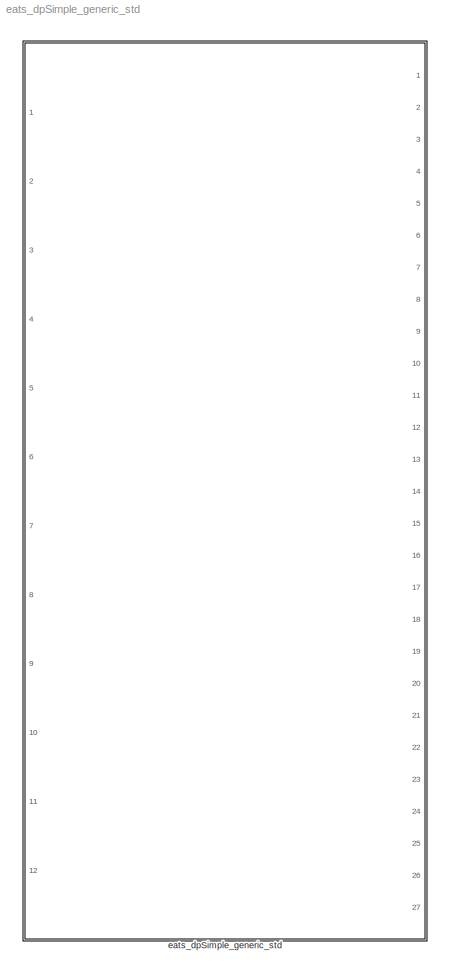
MODEL eats_dpSimple_generic_std
KIND library
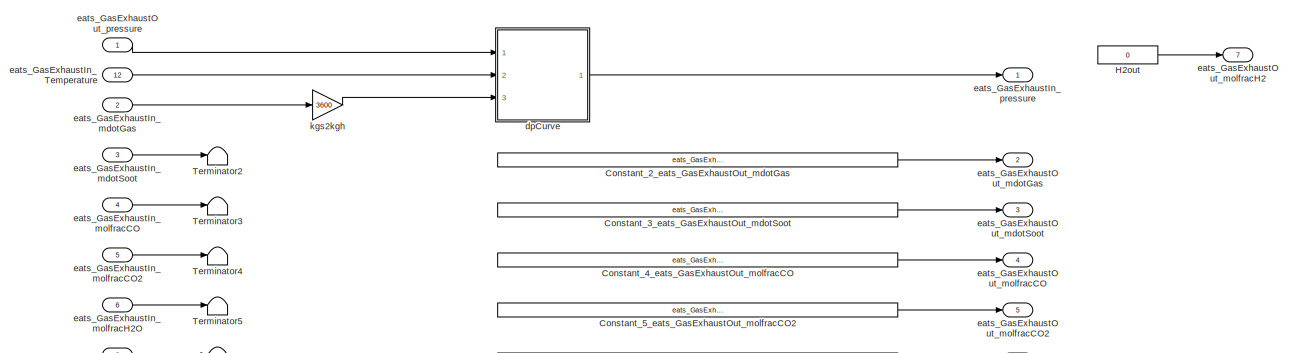
[diagram: eats_dpSimple_generic_std - part 1/2, full width, top band]
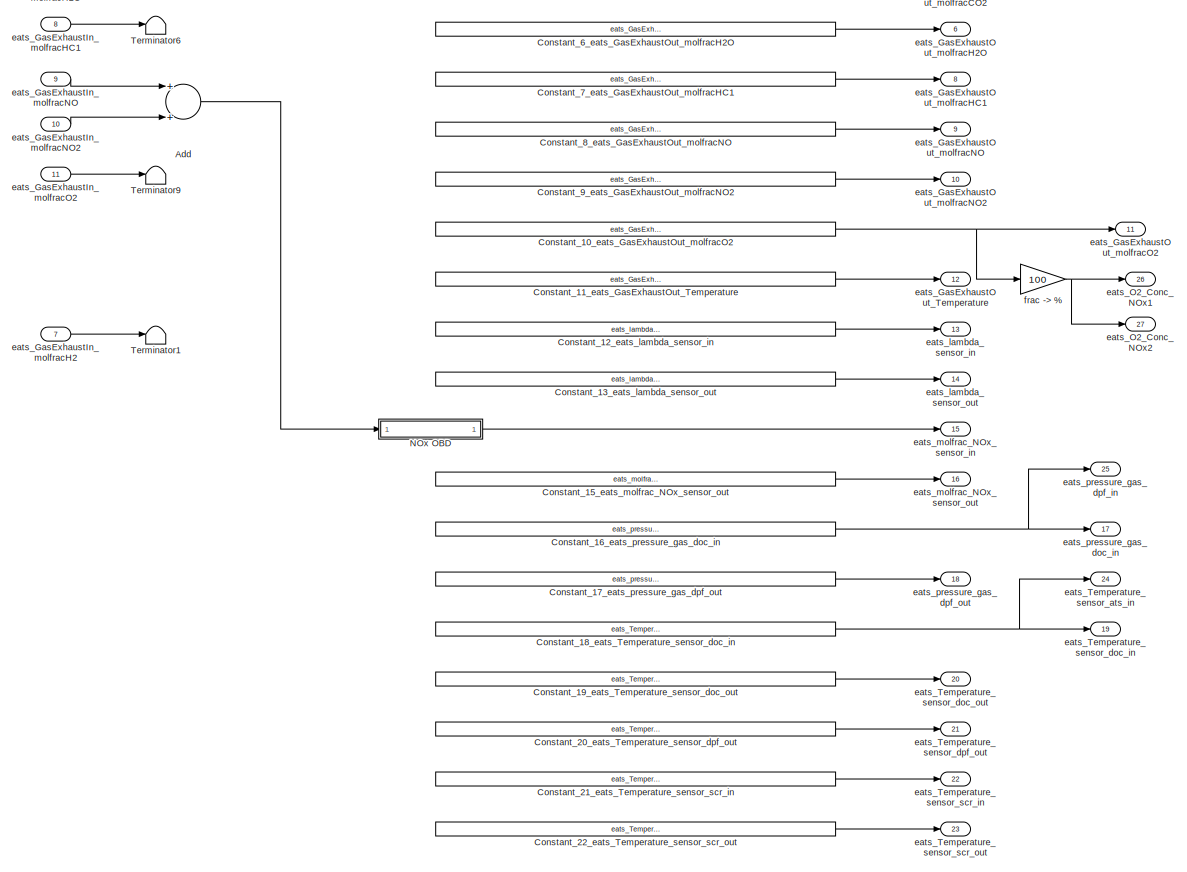
[diagram: eats_dpSimple_generic_std - part 2/2, full width, middle band]
BLOCK [SubSystem] eats_dpSimple_generic_std
  Ports = [12, 27]
  RequestExecContextInheritance = off
  SID = 1
BLOCK [Sum] eats_dpSimple_generic_std/Add
  InputSameDT = off
  OutDataTypeStr = Inherit: Inherit via internal rule
  Ports = [2, 1]
  SID = 91
  SaturateOnIntegerOverflow = off
BLOCK [Constant] eats_dpSimple_generic_std/Constant_10_eats_GasExhaustOut_molfracO2
  SID = 55
  Value = eats_GasExhaustOut_molfracO2
BLOCK [Constant] eats_dpSimple_generic_std/Constant_11_eats_GasExhaustOut_Temperature
  SID = 56
  Value = eats_GasExhaustOut_Temperature
BLOCK [Constant] eats_dpSimple_generic_std/Constant_12_eats_lambda_sensor_in
  SID = 57
  Value = eats_lambda_sensor_in
BLOCK [Constant] eats_dpSimple_generic_std/Constant_13_eats_lambda_sensor_out
  SID = 58
  Value = eats_lambda_sensor_out
BLOCK [Constant] eats_dpSimple_generic_std/Constant_15_eats_molfrac_NOx_sensor_out
  SID = 60
  Value = eats_molfrac_NOx_sensor_out
BLOCK [Constant] eats_dpSimple_generic_std/Constant_16_eats_pressure_gas_doc_in
  SID = 61
  Value = eats_pressure_gas_doc_in
BLOCK [Constant] eats_dpSimple_generic_std/Constant_17_eats_pressure_gas_dpf_out
  SID = 62
  Value = eats_pressure_gas_dpf_out
BLOCK [Constant] eats_dpSimple_generic_std/Constant_18_eats_Temperature_sensor_doc_in
  SID = 63
  Value = eats_Temperature_sensor_doc_in
BLOCK [Constant] eats_dpSimple_generic_std/Constant_19_eats_Temperature_sensor_doc_out
  SID = 64
  Value = eats_Temperature_sensor_doc_out
BLOCK [Constant] eats_dpSimple_generic_std/Constant_20_eats_Temperature_sensor_dpf_out
  SID = 65
  Value = eats_Temperature_sensor_dpf_out
BLOCK [Constant] eats_dpSimple_generic_std/Constant_21_eats_Temperature_sensor_scr_in
  SID = 66
  Value = eats_Temperature_sensor_scr_in
BLOCK [Constant] eats_dpSimple_generic_std/Constant_22_eats_Temperature_sensor_scr_out
  SID = 67
  Value = eats_Temperature_sensor_scr_out
BLOCK [Constant] eats_dpSimple_generic_std/Constant_2_eats_GasExhaustOut_mdotGas
  SID = 47
  Value = eats_GasExhaustOut_mdotGas
BLOCK [Constant] eats_dpSimple_generic_std/Constant_3_eats_GasExhaustOut_mdotSoot
  SID = 48
  Value = eats_GasExhaustOut_mdotSoot
BLOCK [Constant] eats_dpSimple_generic_std/Constant_4_eats_GasExhaustOut_molfracCO
  SID = 49
  Value = eats_GasExhaustOut_molfracCO
BLOCK [Constant] eats_dpSimple_generic_std/Constant_5_eats_GasExhaustOut_molfracCO2
  SID = 50
  Value = eats_GasExhaustOut_molfracCO2
BLOCK [Constant] eats_dpSimple_generic_std/Constant_6_eats_GasExhaustOut_molfracH2O
  SID = 51
  Value = eats_GasExhaustOut_molfracH2O
BLOCK [Constant] eats_dpSimple_generic_std/Constant_7_eats_GasExhaustOut_molfracHC1
  SID = 52
  Value = eats_GasExhaustOut_molfracHC1
BLOCK [Constant] eats_dpSimple_generic_std/Constant_8_eats_GasExhaustOut_molfracNO
  SID = 53
  Value = eats_GasExhaustOut_molfracNO
BLOCK [Constant] eats_dpSimple_generic_std/Constant_9_eats_GasExhaustOut_molfracNO2
  SID = 54
  Value = eats_GasExhaustOut_molfracNO2
BLOCK [Constant] eats_dpSimple_generic_std/H2out
  SID = 110
  Value = 0
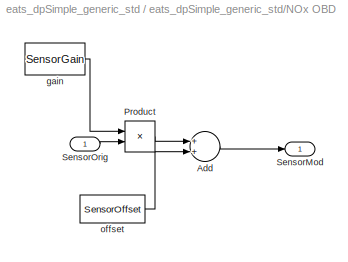
BLOCK [SubSystem] eats_dpSimple_generic_std/NOx OBD
  Ports = [1, 1]
  RequestExecContextInheritance = off
  SID = 92
BLOCK [Sum] eats_dpSimple_generic_std/NOx OBD/Add
  InputSameDT = off
  OutDataTypeStr = Inherit: Inherit via internal rule
  Ports = [2, 1]
  SID = 94
  SaturateOnIntegerOverflow = off
BLOCK [Product] eats_dpSimple_generic_std/NOx OBD/Product
  InputSameDT = off
  OutDataTypeStr = Inherit: Inherit via internal rule
  Ports = [2, 1]
  SID = 95
  SaturateOnIntegerOverflow = off
BLOCK [Outport] eats_dpSimple_generic_std/NOx OBD/SensorMod
  IconDisplay = Port number
  SID = 98
BLOCK [Inport] eats_dpSimple_generic_std/NOx OBD/SensorOrig
  IconDisplay = Port number
  SID = 93
BLOCK [Constant] eats_dpSimple_generic_std/NOx OBD/gain
  SID = 96
  Value = SensorGain
BLOCK [Constant] eats_dpSimple_generic_std/NOx OBD/offset
  SID = 97
  Value = SensorOffset
BLOCK [Terminator] eats_dpSimple_generic_std/Terminator1
  SID = 108
BLOCK [Terminator] eats_dpSimple_generic_std/Terminator2
  SID = 36
BLOCK [Terminator] eats_dpSimple_generic_std/Terminator3
  SID = 37
BLOCK [Terminator] eats_dpSimple_generic_std/Terminator4
  SID = 38
BLOCK [Terminator] eats_dpSimple_generic_std/Terminator5
  SID = 39
BLOCK [Terminator] eats_dpSimple_generic_std/Terminator6
  SID = 40
BLOCK [Terminator] eats_dpSimple_generic_std/Terminator9
  SID = 43
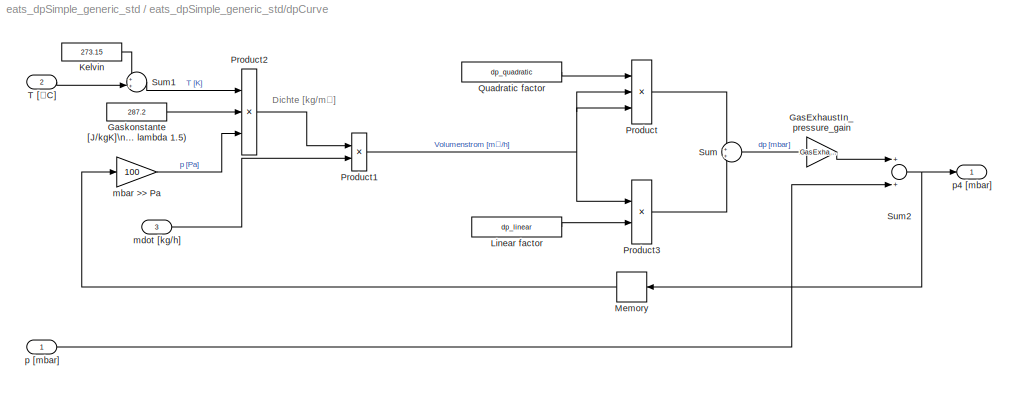
BLOCK [SubSystem] eats_dpSimple_generic_std/dpCurve
  Ports = [3, 1]
  RequestExecContextInheritance = off
  SID = 68
BLOCK [Gain] eats_dpSimple_generic_std/dpCurve/GasExhaustIn_pressure_gain
  Gain = GasExhaustIn_pressureGain
  OutDataTypeStr = Inherit: Inherit via internal rule
  ParamDataTypeStr = Inherit: Inherit via internal rule
  SID = 100
  SaturateOnIntegerOverflow = off
BLOCK [Constant] eats_dpSimple_generic_std/dpCurve/Gaskonstante [J//kgK]\n(Abgas ca 200°C, lambda 1.5)
  SID = 77
  Value = 287.2
BLOCK [Constant] eats_dpSimple_generic_std/dpCurve/Kelvin
  SID = 78
  Value = 273.15
BLOCK [Constant] eats_dpSimple_generic_std/dpCurve/Linear factor
  SID = 79
  Value = dp_linear
BLOCK [Memory] eats_dpSimple_generic_std/dpCurve/Memory
  SID = 80
  X0 = eats_GasExhaustIn_pressure
BLOCK [Product] eats_dpSimple_generic_std/dpCurve/Product
  InputSameDT = off
  Inputs = 3
  OutDataTypeStr = Inherit: Inherit via internal rule
  Ports = [3, 1]
  SID = 81
  SaturateOnIntegerOverflow = off
BLOCK [Product] eats_dpSimple_generic_std/dpCurve/Product1
  Inputs = /*
  Ports = [2, 1]
  RndMeth = Floor
  SID = 82
BLOCK [Product] eats_dpSimple_generic_std/dpCurve/Product2
  Inputs = //*
  Ports = [3, 1]
  RndMeth = Floor
  SID = 83
BLOCK [Product] eats_dpSimple_generic_std/dpCurve/Product3
  InputSameDT = off
  OutDataTypeStr = Inherit: Inherit via internal rule
  Ports = [2, 1]
  SID = 84
  SaturateOnIntegerOverflow = off
BLOCK [Constant] eats_dpSimple_generic_std/dpCurve/Quadratic factor
  SID = 85
  Value = dp_quadratic
BLOCK [Sum] eats_dpSimple_generic_std/dpCurve/Sum
  IconShape = round
  InputSameDT = off
  OutDataTypeStr = Inherit: Inherit via internal rule
  Ports = [2, 1]
  SID = 86
  SaturateOnIntegerOverflow = off
BLOCK [Sum] eats_dpSimple_generic_std/dpCurve/Sum1
  IconShape = round
  InputSameDT = off
  Inputs = ++|
  OutDataTypeStr = Inherit: Inherit via internal rule
  Ports = [2, 1]
  SID = 87
  SaturateOnIntegerOverflow = off
BLOCK [Sum] eats_dpSimple_generic_std/dpCurve/Sum2
  InputSameDT = off
  OutDataTypeStr = Inherit: Inherit via internal rule
  Ports = [2, 1]
  SID = 88
  SaturateOnIntegerOverflow = off
BLOCK [Inport] eats_dpSimple_generic_std/dpCurve/T [°C]
  IconDisplay = Port number
  Port = 2
  SID = 75
BLOCK [Gain] eats_dpSimple_generic_std/dpCurve/mbar >> Pa
  Gain = 100
  OutDataTypeStr = Inherit: Inherit via internal rule
  ParamDataTypeStr = Inherit: Inherit via internal rule
  SID = 89
  SaturateOnIntegerOverflow = off
BLOCK [Inport] eats_dpSimple_generic_std/dpCurve/mdot [kg//h]
  IconDisplay = Port number
  Port = 3
  SID = 76
BLOCK [Inport] eats_dpSimple_generic_std/dpCurve/p [mbar]
  IconDisplay = Port number
  SID = 74
BLOCK [Outport] eats_dpSimple_generic_std/dpCurve/p4 [mbar]
  IconDisplay = Port number
  SID = 90
BLOCK [Inport] eats_dpSimple_generic_std/eats_GasExhaustIn_Temperature
  IconDisplay = Port number
  Port = 12
  SID = 11
BLOCK [Inport] eats_dpSimple_generic_std/eats_GasExhaustIn_mdotGas
  IconDisplay = Port number
  Port = 2
  SID = 2
BLOCK [Inport] eats_dpSimple_generic_std/eats_GasExhaustIn_mdotSoot
  IconDisplay = Port number
  Port = 3
  SID = 3
BLOCK [Inport] eats_dpSimple_generic_std/eats_GasExhaustIn_molfracCO
  IconDisplay = Port number
  Port = 4
  SID = 4
BLOCK [Inport] eats_dpSimple_generic_std/eats_GasExhaustIn_molfracCO2
  IconDisplay = Port number
  Port = 5
  SID = 5
BLOCK [Inport] eats_dpSimple_generic_std/eats_GasExhaustIn_molfracH2
  IconDisplay = Port number
  Port = 7
  SID = 107
BLOCK [Inport] eats_dpSimple_generic_std/eats_GasExhaustIn_molfracH2O
  IconDisplay = Port number
  Port = 6
  SID = 6
BLOCK [Inport] eats_dpSimple_generic_std/eats_GasExhaustIn_molfracHC1
  IconDisplay = Port number
  Port = 8
  SID = 7
BLOCK [Inport] eats_dpSimple_generic_std/eats_GasExhaustIn_molfracNO
  IconDisplay = Port number
  Port = 9
  SID = 8
BLOCK [Inport] eats_dpSimple_generic_std/eats_GasExhaustIn_molfracNO2
  IconDisplay = Port number
  Port = 10
  SID = 9
BLOCK [Inport] eats_dpSimple_generic_std/eats_GasExhaustIn_molfracO2
  IconDisplay = Port number
  Port = 11
  SID = 10
BLOCK [Outport] eats_dpSimple_generic_std/eats_GasExhaustIn_pressure
  IconDisplay = Port number
  SID = 13
BLOCK [Outport] eats_dpSimple_generic_std/eats_GasExhaustOut_Temperature
  IconDisplay = Port number
  Port = 12
  SID = 23
BLOCK [Outport] eats_dpSimple_generic_std/eats_GasExhaustOut_mdotGas
  IconDisplay = Port number
  Port = 2
  SID = 14
BLOCK [Outport] eats_dpSimple_generic_std/eats_GasExhaustOut_mdotSoot
  IconDisplay = Port number
  Port = 3
  SID = 15
BLOCK [Outport] eats_dpSimple_generic_std/eats_GasExhaustOut_molfracCO
  IconDisplay = Port number
  Port = 4
  SID = 16
BLOCK [Outport] eats_dpSimple_generic_std/eats_GasExhaustOut_molfracCO2
  IconDisplay = Port number
  Port = 5
  SID = 17
BLOCK [Outport] eats_dpSimple_generic_std/eats_GasExhaustOut_molfracH2
  IconDisplay = Port number
  Port = 7
  SID = 109
BLOCK [Outport] eats_dpSimple_generic_std/eats_GasExhaustOut_molfracH2O
  IconDisplay = Port number
  Port = 6
  SID = 18
BLOCK [Outport] eats_dpSimple_generic_std/eats_GasExhaustOut_molfracHC1
  IconDisplay = Port number
  Port = 8
  SID = 19
BLOCK [Outport] eats_dpSimple_generic_std/eats_GasExhaustOut_molfracNO
  IconDisplay = Port number
  Port = 9
  SID = 20
BLOCK [Outport] eats_dpSimple_generic_std/eats_GasExhaustOut_molfracNO2
  IconDisplay = Port number
  Port = 10
  SID = 21
BLOCK [Outport] eats_dpSimple_generic_std/eats_GasExhaustOut_molfracO2
  IconDisplay = Port number
  Port = 11
  SID = 22
BLOCK [Inport] eats_dpSimple_generic_std/eats_GasExhaustOut_pressure
  IconDisplay = Port number
  SID = 12
BLOCK [Outport] eats_dpSimple_generic_std/eats_O2_Conc_NOx1
  IconDisplay = Port number
  Port = 26
  SID = 105
BLOCK [Outport] eats_dpSimple_generic_std/eats_O2_Conc_NOx2
  IconDisplay = Port number
  Port = 27
  SID = 106
BLOCK [Outport] eats_dpSimple_generic_std/eats_Temperature_sensor_ats_in
  IconDisplay = Port number
  Port = 24
  SID = 102
BLOCK [Outport] eats_dpSimple_generic_std/eats_Temperature_sensor_doc_in
  IconDisplay = Port number
  Port = 19
  SID = 30
BLOCK [Outport] eats_dpSimple_generic_std/eats_Temperature_sensor_doc_out
  IconDisplay = Port number
  Port = 20
  SID = 31
BLOCK [Outport] eats_dpSimple_generic_std/eats_Temperature_sensor_dpf_out
  IconDisplay = Port number
  Port = 21
  SID = 32
BLOCK [Outport] eats_dpSimple_generic_std/eats_Temperature_sensor_scr_in
  IconDisplay = Port number
  Port = 22
  SID = 33
BLOCK [Outport] eats_dpSimple_generic_std/eats_Temperature_sensor_scr_out
  IconDisplay = Port number
  Port = 23
  SID = 34
BLOCK [Outport] eats_dpSimple_generic_std/eats_lambda_sensor_in
  IconDisplay = Port number
  Port = 13
  SID = 24
BLOCK [Outport] eats_dpSimple_generic_std/eats_lambda_sensor_out
  IconDisplay = Port number
  Port = 14
  SID = 25
BLOCK [Outport] eats_dpSimple_generic_std/eats_molfrac_NOx_sensor_in
  IconDisplay = Port number
  Port = 15
  SID = 26
BLOCK [Outport] eats_dpSimple_generic_std/eats_molfrac_NOx_sensor_out
  IconDisplay = Port number
  Port = 16
  SID = 27
BLOCK [Outport] eats_dpSimple_generic_std/eats_pressure_gas_doc_in
  IconDisplay = Port number
  Port = 17
  SID = 28
BLOCK [Outport] eats_dpSimple_generic_std/eats_pressure_gas_dpf_in
  IconDisplay = Port number
  Port = 25
  SID = 103
BLOCK [Outport] eats_dpSimple_generic_std/eats_pressure_gas_dpf_out
  IconDisplay = Port number
  Port = 18
  SID = 29
BLOCK [Gain] eats_dpSimple_generic_std/frac -> %
  Gain = 100
  OutDataTypeStr = Inherit: Inherit via internal rule
  ParamDataTypeStr = Inherit: Inherit via internal rule
  SID = 104
  SaturateOnIntegerOverflow = off
BLOCK [Gain] eats_dpSimple_generic_std/kgs2kgh
  Gain = 3600
  OutDataTypeStr = Inherit: Inherit via internal rule
  ParamDataTypeStr = Inherit: Inherit via internal rule
  SID = 69
  SaturateOnIntegerOverflow = off
ANNOTATION eats_dpSimple_generic_std/dpCurve: Dichte [kg/m³]
LINE eats_dpSimple_generic_std/Add:1 -> eats_dpSimple_generic_std/NOx OBD:1
NET eats_dpSimple_generic_std/Constant_10_eats_GasExhaustOut_molfracO2:1 -> eats_dpSimple_generic_std/eats_GasExhaustOut_molfracO2:1, eats_dpSimple_generic_std/frac -> %:1
LINE eats_dpSimple_generic_std/Constant_11_eats_GasExhaustOut_Temperature:1 -> eats_dpSimple_generic_std/eats_GasExhaustOut_Temperature:1
LINE eats_dpSimple_generic_std/Constant_12_eats_lambda_sensor_in:1 -> eats_dpSimple_generic_std/eats_lambda_sensor_in:1
LINE eats_dpSimple_generic_std/Constant_13_eats_lambda_sensor_out:1 -> eats_dpSimple_generic_std/eats_lambda_sensor_out:1
LINE eats_dpSimple_generic_std/Constant_15_eats_molfrac_NOx_sensor_out:1 -> eats_dpSimple_generic_std/eats_molfrac_NOx_sensor_out:1
NET eats_dpSimple_generic_std/Constant_16_eats_pressure_gas_doc_in:1 -> eats_dpSimple_generic_std/eats_pressure_gas_doc_in:1, eats_dpSimple_generic_std/eats_pressure_gas_dpf_in:1
LINE eats_dpSimple_generic_std/Constant_17_eats_pressure_gas_dpf_out:1 -> eats_dpSimple_generic_std/eats_pressure_gas_dpf_out:1
NET eats_dpSimple_generic_std/Constant_18_eats_Temperature_sensor_doc_in:1 -> eats_dpSimple_generic_std/eats_Temperature_sensor_ats_in:1, eats_dpSimple_generic_std/eats_Temperature_sensor_doc_in:1
LINE eats_dpSimple_generic_std/Constant_19_eats_Temperature_sensor_doc_out:1 -> eats_dpSimple_generic_std/eats_Temperature_sensor_doc_out:1
LINE eats_dpSimple_generic_std/Constant_20_eats_Temperature_sensor_dpf_out:1 -> eats_dpSimple_generic_std/eats_Temperature_sensor_dpf_out:1
LINE eats_dpSimple_generic_std/Constant_21_eats_Temperature_sensor_scr_in:1 -> eats_dpSimple_generic_std/eats_Temperature_sensor_scr_in:1
LINE eats_dpSimple_generic_std/Constant_22_eats_Temperature_sensor_scr_out:1 -> eats_dpSimple_generic_std/eats_Temperature_sensor_scr_out:1
LINE eats_dpSimple_generic_std/Constant_2_eats_GasExhaustOut_mdotGas:1 -> eats_dpSimple_generic_std/eats_GasExhaustOut_mdotGas:1
LINE eats_dpSimple_generic_std/Constant_3_eats_GasExhaustOut_mdotSoot:1 -> eats_dpSimple_generic_std/eats_GasExhaustOut_mdotSoot:1
LINE eats_dpSimple_generic_std/Constant_4_eats_GasExhaustOut_molfracCO:1 -> eats_dpSimple_generic_std/eats_GasExhaustOut_molfracCO:1
LINE eats_dpSimple_generic_std/Constant_5_eats_GasExhaustOut_molfracCO2:1 -> eats_dpSimple_generic_std/eats_GasExhaustOut_molfracCO2:1
LINE eats_dpSimple_generic_std/Constant_6_eats_GasExhaustOut_molfracH2O:1 -> eats_dpSimple_generic_std/eats_GasExhaustOut_molfracH2O:1
LINE eats_dpSimple_generic_std/Constant_7_eats_GasExhaustOut_molfracHC1:1 -> eats_dpSimple_generic_std/eats_GasExhaustOut_molfracHC1:1
LINE eats_dpSimple_generic_std/Constant_8_eats_GasExhaustOut_molfracNO:1 -> eats_dpSimple_generic_std/eats_GasExhaustOut_molfracNO:1
LINE eats_dpSimple_generic_std/Constant_9_eats_GasExhaustOut_molfracNO2:1 -> eats_dpSimple_generic_std/eats_GasExhaustOut_molfracNO2:1
LINE eats_dpSimple_generic_std/H2out:1 -> eats_dpSimple_generic_std/eats_GasExhaustOut_molfracH2:1
LINE eats_dpSimple_generic_std/NOx OBD/Add:1 -> eats_dpSimple_generic_std/NOx OBD/SensorMod:1
LINE eats_dpSimple_generic_std/NOx OBD/Product:1 -> eats_dpSimple_generic_std/NOx OBD/Add:1
LINE eats_dpSimple_generic_std/NOx OBD/SensorOrig:1 -> eats_dpSimple_generic_std/NOx OBD/Product:2
LINE eats_dpSimple_generic_std/NOx OBD/gain:1 -> eats_dpSimple_generic_std/NOx OBD/Product:1
LINE eats_dpSimple_generic_std/NOx OBD/offset:1 -> eats_dpSimple_generic_std/NOx OBD/Add:2
LINE eats_dpSimple_generic_std/NOx OBD:1 -> eats_dpSimple_generic_std/eats_molfrac_NOx_sensor_in:1
LINE eats_dpSimple_generic_std/dpCurve/GasExhaustIn_pressure_gain:1 -> eats_dpSimple_generic_std/dpCurve/Sum2:1
LINE eats_dpSimple_generic_std/dpCurve/Gaskonstante [J//kgK]\n(Abgas ca 200°C, lambda 1.5):1 -> eats_dpSimple_generic_std/dpCurve/Product2:2
LINE eats_dpSimple_generic_std/dpCurve/Kelvin:1 -> eats_dpSimple_generic_std/dpCurve/Sum1:1
LINE eats_dpSimple_generic_std/dpCurve/Linear factor:1 -> eats_dpSimple_generic_std/dpCurve/Product3:2
LINE eats_dpSimple_generic_std/dpCurve/Memory:1 -> eats_dpSimple_generic_std/dpCurve/mbar >> Pa:1
NET eats_dpSimple_generic_std/dpCurve/Product1:1 -> eats_dpSimple_generic_std/dpCurve/Product3:1, eats_dpSimple_generic_std/dpCurve/Product:2, eats_dpSimple_generic_std/dpCurve/Product:3
LINE eats_dpSimple_generic_std/dpCurve/Product2:1 -> eats_dpSimple_generic_std/dpCurve/Product1:1
LINE eats_dpSimple_generic_std/dpCurve/Product3:1 -> eats_dpSimple_generic_std/dpCurve/Sum:2
LINE eats_dpSimple_generic_std/dpCurve/Product:1 -> eats_dpSimple_generic_std/dpCurve/Sum:1
LINE eats_dpSimple_generic_std/dpCurve/Quadratic factor:1 -> eats_dpSimple_generic_std/dpCurve/Product:1
LINE eats_dpSimple_generic_std/dpCurve/Sum1:1 -> eats_dpSimple_generic_std/dpCurve/Product2:1
NET eats_dpSimple_generic_std/dpCurve/Sum2:1 -> eats_dpSimple_generic_std/dpCurve/Memory:1, eats_dpSimple_generic_std/dpCurve/p4 [mbar]:1
LINE eats_dpSimple_generic_std/dpCurve/Sum:1 -> eats_dpSimple_generic_std/dpCurve/GasExhaustIn_pressure_gain:1
LINE eats_dpSimple_generic_std/dpCurve/T [°C]:1 -> eats_dpSimple_generic_std/dpCurve/Sum1:2
LINE eats_dpSimple_generic_std/dpCurve/mbar >> Pa:1 -> eats_dpSimple_generic_std/dpCurve/Product2:3
LINE eats_dpSimple_generic_std/dpCurve/mdot [kg//h]:1 -> eats_dpSimple_generic_std/dpCurve/Product1:2
LINE eats_dpSimple_generic_std/dpCurve/p [mbar]:1 -> eats_dpSimple_generic_std/dpCurve/Sum2:2
LINE eats_dpSimple_generic_std/dpCurve:1 -> eats_dpSimple_generic_std/eats_GasExhaustIn_pressure:1
LINE eats_dpSimple_generic_std/eats_GasExhaustIn_Temperature:1 -> eats_dpSimple_generic_std/dpCurve:2
LINE eats_dpSimple_generic_std/eats_GasExhaustIn_mdotGas:1 -> eats_dpSimple_generic_std/kgs2kgh:1
LINE eats_dpSimple_generic_std/eats_GasExhaustIn_mdotSoot:1 -> eats_dpSimple_generic_std/Terminator2:1
LINE eats_dpSimple_generic_std/eats_GasExhaustIn_molfracCO2:1 -> eats_dpSimple_generic_std/Terminator4:1
LINE eats_dpSimple_generic_std/eats_GasExhaustIn_molfracCO:1 -> eats_dpSimple_generic_std/Terminator3:1
LINE eats_dpSimple_generic_std/eats_GasExhaustIn_molfracH2:1 -> eats_dpSimple_generic_std/Terminator1:1
LINE eats_dpSimple_generic_std/eats_GasExhaustIn_molfracH2O:1 -> eats_dpSimple_generic_std/Terminator5:1
LINE eats_dpSimple_generic_std/eats_GasExhaustIn_molfracHC1:1 -> eats_dpSimple_generic_std/Terminator6:1
LINE eats_dpSimple_generic_std/eats_GasExhaustIn_molfracNO2:1 -> eats_dpSimple_generic_std/Add:2
LINE eats_dpSimple_generic_std/eats_GasExhaustIn_molfracNO:1 -> eats_dpSimple_generic_std/Add:1
LINE eats_dpSimple_generic_std/eats_GasExhaustIn_molfracO2:1 -> eats_dpSimple_generic_std/Terminator9:1
LINE eats_dpSimple_generic_std/eats_GasExhaustOut_pressure:1 -> eats_dpSimple_generic_std/dpCurve:1
NET eats_dpSimple_generic_std/frac -> %:1 -> eats_dpSimple_generic_std/eats_O2_Conc_NOx1:1, eats_dpSimple_generic_std/eats_O2_Conc_NOx2:1
LINE eats_dpSimple_generic_std/kgs2kgh:1 -> eats_dpSimple_generic_std/dpCurve:3
note: NET lines group one-source signal fan-out (src -> all destinations, sorted); 1:1 wires keep LINE
